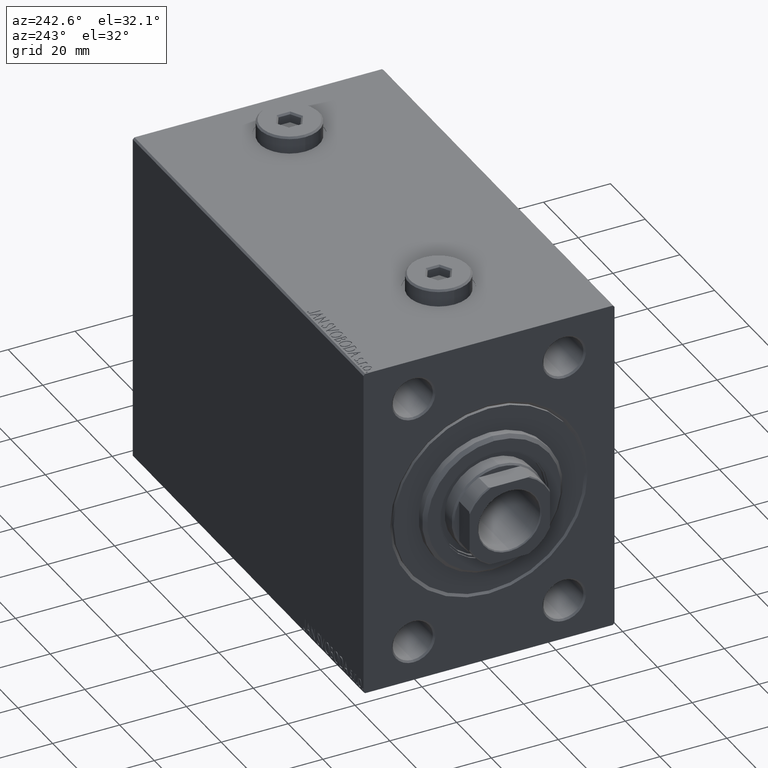
[diagram: clean part render]
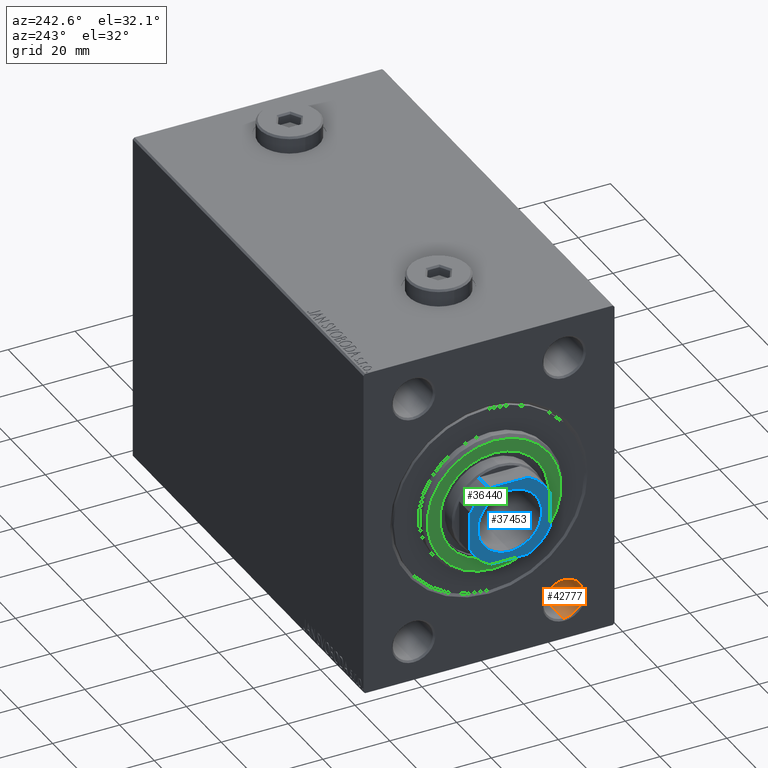
[diagram: same view with three faces highlighted in distinct colors, each labeled with its STEP entity id]
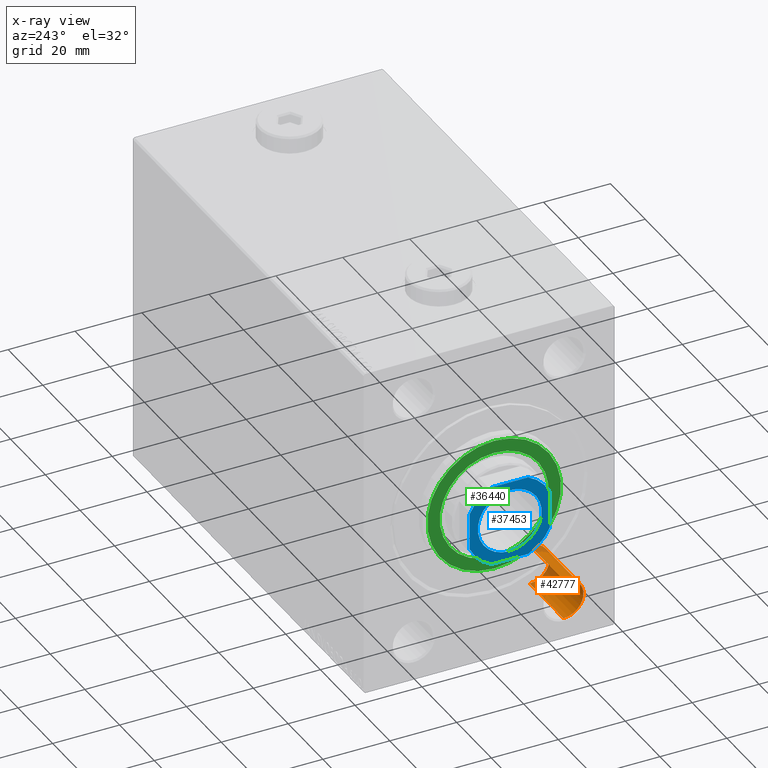
[diagram: x-ray of the same camera — body ghosted, the three highlighted faces saturated]
A machine part, auxiliary view with three faces highlighted in distinct colors.
The next image is the same camera in x-ray (body ghosted, the three faces saturated) — at least one of them is partly hidden behind the body in this view.
Their STEP definitions:

[orange] entity #42777 — the highlighted cylindrical surface (edge-blend (fillet) strip) has radius 6 mm, axis along (-1, -0, -0).
#3853 = DIRECTION ( 'NONE',  ( -1.000000000000000000, -0.000000000000000000, -0.000000000000000000 ) ) ;
#5293 = EDGE_LOOP ( 'NONE', ( #25548, #40086, #42878, #21925 ) ) ;
#6333 = DIRECTION ( 'NONE',  ( -1.000000000000000000, 0.000000000000000000, 0.000000000000000000 ) ) ;
#6869 = VERTEX_POINT ( 'NONE', #41028 ) ;
#9415 = CARTESIAN_POINT ( 'NONE',  ( 20.00000000000000000, -22.50000000000000000, -32.00000000000000711 ) ) ;
#9768 = CARTESIAN_POINT ( 'NONE',  ( 0.000000000000000000, -22.50000000000000000, -32.00000000000000711 ) ) ;
#11003 = CARTESIAN_POINT ( 'NONE',  ( 0.5000000000000004441, -22.50000000000000000, -44.00000000000000711 ) ) ;
#11447 = CARTESIAN_POINT ( 'NONE',  ( 0.000000000000000000, -22.50000000000000000, -44.00000000000000711 ) ) ;
#14233 = CARTESIAN_POINT ( 'NONE',  ( 0.000000000000000000, -22.50000000000000000, -38.00000000000000711 ) ) ;
#15469 = AXIS2_PLACEMENT_3D ( 'NONE', #14233, #3853, #18161 ) ;
#16380 = VERTEX_POINT ( 'NONE', #11003 ) ;
#17651 = CIRCLE ( 'NONE', #36857, 5.999999999999998224 ) ;
#18161 = DIRECTION ( 'NONE',  ( 0.000000000000000000, 0.000000000000000000, 1.000000000000000000 ) ) ;
#20420 = DIRECTION ( 'NONE',  ( 0.000000000000000000, 0.000000000000000000, -1.000000000000000000 ) ) ;
#20715 = CIRCLE ( 'NONE', #37708, 5.999999999999998224 ) ;
#21643 = FACE_OUTER_BOUND ( 'NONE', #5293, .T. ) ;
#21925 = ORIENTED_EDGE ( 'NONE', *, *, #32259, .F. ) ;
#24004 = LINE ( 'NONE', #11447, #31498 ) ;
#24610 = CARTESIAN_POINT ( 'NONE',  ( 20.00000000000000000, -22.50000000000000000, -38.00000000000000711 ) ) ;
#24875 = VECTOR ( 'NONE', #25457, 1000.000000000000000 ) ;
#25457 = DIRECTION ( 'NONE',  ( -1.000000000000000000, -0.000000000000000000, -0.000000000000000000 ) ) ;
#25548 = ORIENTED_EDGE ( 'NONE', *, *, #44690, .F. ) ;
#29155 = EDGE_CURVE ( 'NONE', #42883, #16380, #24004, .T. ) ;
#30873 = DIRECTION ( 'NONE',  ( 0.000000000000000000, 0.000000000000000000, 1.000000000000000000 ) ) ;
#31498 = VECTOR ( 'NONE', #34646, 1000.000000000000000 ) ;
#32259 = EDGE_CURVE ( 'NONE', #41494, #6869, #41428, .T. ) ;
#34532 = CARTESIAN_POINT ( 'NONE',  ( 0.5000000000000004441, -22.50000000000000000, -38.00000000000000711 ) ) ;
#34646 = DIRECTION ( 'NONE',  ( -1.000000000000000000, -0.000000000000000000, -0.000000000000000000 ) ) ;
#36857 = AXIS2_PLACEMENT_3D ( 'NONE', #34532, #6333, #20420 ) ;
#36875 = CARTESIAN_POINT ( 'NONE',  ( 20.00000000000000000, -22.50000000000000000, -44.00000000000000711 ) ) ;
#37708 = AXIS2_PLACEMENT_3D ( 'NONE', #24610, #45411, #30873 ) ;
#40086 = ORIENTED_EDGE ( 'NONE', *, *, #29155, .T. ) ;
#40549 = EDGE_CURVE ( 'NONE', #16380, #6869, #17651, .T. ) ;
#41028 = CARTESIAN_POINT ( 'NONE',  ( 0.5000000000000004441, -22.50000000000000000, -32.00000000000000711 ) ) ;
#41428 = LINE ( 'NONE', #9768, #24875 ) ;
#41494 = VERTEX_POINT ( 'NONE', #9415 ) ;
#42665 = CYLINDRICAL_SURFACE ( 'NONE', #15469, 5.999999999999998224 ) ;
#42777 = ADVANCED_FACE ( 'NONE', ( #21643 ), #42665, .F. ) ;
#42878 = ORIENTED_EDGE ( 'NONE', *, *, #40549, .T. ) ;
#42883 = VERTEX_POINT ( 'NONE', #36875 ) ;
#44690 = EDGE_CURVE ( 'NONE', #42883, #41494, #20715, .T. ) ;
#45411 = DIRECTION ( 'NONE',  ( -1.000000000000000000, -0.000000000000000000, -0.000000000000000000 ) ) ;

[blue] entity #37453 — the highlighted planar face has unit normal (-1, 0, 0).
#1347 = VECTOR ( 'NONE', #4729, 1000.000000000000000 ) ;
#1400 = VECTOR ( 'NONE', #12099, 1000.000000000000000 ) ;
#1786 = DIRECTION ( 'NONE',  ( 1.000000000000000000, 0.000000000000000000, 0.000000000000000000 ) ) ;
#2152 = DIRECTION ( 'NONE',  ( 0.000000000000000000, -0.000000000000000000, -1.000000000000000000 ) ) ;
#2481 = EDGE_LOOP ( 'NONE', ( #14770, #33989, #29015, #29762, #24853, #44016, #43887, #14282 ) ) ;
#2601 = DIRECTION ( 'NONE',  ( 1.000000000000000000, 0.000000000000000000, 0.000000000000000000 ) ) ;
#2951 = EDGE_CURVE ( 'NONE', #19893, #43328, #7980, .T. ) ;
#3415 = DIRECTION ( 'NONE',  ( -0.000000000000000000, 0.000000000000000000, 1.000000000000000000 ) ) ;
#3460 = DIRECTION ( 'NONE',  ( 1.000000000000000000, 0.000000000000000000, 0.000000000000000000 ) ) ;
#3930 = DIRECTION ( 'NONE',  ( -0.000000000000000000, 0.000000000000000000, 1.000000000000000000 ) ) ;
#4331 = CARTESIAN_POINT ( 'NONE',  ( 0.000000000000000000, 0.000000000000000000, 131.0000000000000000 ) ) ;
#4729 = DIRECTION ( 'NONE',  ( -1.000000000000000000, -0.000000000000000000, -0.000000000000000000 ) ) ;
#5173 = EDGE_CURVE ( 'NONE', #43328, #19893, #45690, .T. ) ;
#6368 = EDGE_CURVE ( 'NONE', #36756, #13837, #18396, .T. ) ;
#7531 = VERTEX_POINT ( 'NONE', #14262 ) ;
#7613 = CARTESIAN_POINT ( 'NONE',  ( -11.99999999999999822, -12.00000000000000355, 131.0000000000000000 ) ) ;
#7614 = DIRECTION ( 'NONE',  ( 1.000000000000000000, 0.000000000000000000, 0.000000000000000000 ) ) ;
#7980 = CIRCLE ( 'NONE', #17573, 9.550000000000030909 ) ;
#8286 = EDGE_CURVE ( 'NONE', #25953, #7531, #11887, .T. ) ;
#8464 = CARTESIAN_POINT ( 'NONE',  ( 12.00000000000000000, -5.499090833946961965, 131.0000000000000000 ) ) ;
#9172 = DIRECTION ( 'NONE',  ( 0.000000000000000000, -0.000000000000000000, -1.000000000000000000 ) ) ;
#9360 = CARTESIAN_POINT ( 'NONE',  ( 0.000000000000000000, 0.000000000000000000, 131.0000000000000000 ) ) ;
#9506 = AXIS2_PLACEMENT_3D ( 'NONE', #15995, #2152, #2601 ) ;
#11484 = FACE_OUTER_BOUND ( 'NONE', #2481, .T. ) ;
#11887 = LINE ( 'NONE', #40760, #1347 ) ;
#12099 = DIRECTION ( 'NONE',  ( -2.168404344971008868E-16, 1.000000000000000000, -0.000000000000000000 ) ) ;
#12501 = AXIS2_PLACEMENT_3D ( 'NONE', #31443, #3930, #38115 ) ;
#12556 = VECTOR ( 'NONE', #3460, 1000.000000000000000 ) ;
#12855 = EDGE_CURVE ( 'NONE', #27791, #36756, #34893, .T. ) ;
#13041 = DIRECTION ( 'NONE',  ( 1.000000000000000000, 0.000000000000000000, 0.000000000000000000 ) ) ;
#13193 = CARTESIAN_POINT ( 'NONE',  ( -12.00000000000000178, 5.499090833946936208, 131.0000000000000000 ) ) ;
#13626 = EDGE_CURVE ( 'NONE', #7531, #38406, #22410, .T. ) ;
#13837 = VERTEX_POINT ( 'NONE', #8464 ) ;
#14262 = CARTESIAN_POINT ( 'NONE',  ( -5.499090833946946866, 11.99999999999999645, 131.0000000000000000 ) ) ;
#14282 = ORIENTED_EDGE ( 'NONE', *, *, #6368, .T. ) ;
#14770 = ORIENTED_EDGE ( 'NONE', *, *, #37032, .T. ) ;
#15995 = CARTESIAN_POINT ( 'NONE',  ( 0.000000000000000000, 0.000000000000000000, 131.0000000000000000 ) ) ;
#16948 = ORIENTED_EDGE ( 'NONE', *, *, #5173, .T. ) ;
#17573 = AXIS2_PLACEMENT_3D ( 'NONE', #43845, #9172, #1786 ) ;
#18396 = CIRCLE ( 'NONE', #12501, 13.19999999999998153 ) ;
#18975 = LINE ( 'NONE', #23369, #31825 ) ;
#19216 = DIRECTION ( 'NONE',  ( 2.168404344971008868E-16, -1.000000000000000000, 0.000000000000000000 ) ) ;
#19864 = AXIS2_PLACEMENT_3D ( 'NONE', #39391, #25529, #39612 ) ;
#19893 = VERTEX_POINT ( 'NONE', #43862 ) ;
#22410 = CIRCLE ( 'NONE', #43783, 13.19999999999997264 ) ;
#23369 = CARTESIAN_POINT ( 'NONE',  ( -12.00000000000000355, 11.99999999999999645, 131.0000000000000000 ) ) ;
#23659 = VERTEX_POINT ( 'NONE', #30432 ) ;
#24853 = ORIENTED_EDGE ( 'NONE', *, *, #45149, .T. ) ;
#25052 = AXIS2_PLACEMENT_3D ( 'NONE', #4331, #3415, #28854 ) ;
#25137 = PLANE ( 'NONE',  #25052 ) ;
#25529 = DIRECTION ( 'NONE',  ( -0.000000000000000000, 0.000000000000000000, 1.000000000000000000 ) ) ;
#25779 = CIRCLE ( 'NONE', #19864, 13.19999999999998153 ) ;
#25953 = VERTEX_POINT ( 'NONE', #29828 ) ;
#27791 = VERTEX_POINT ( 'NONE', #37233 ) ;
#28854 = DIRECTION ( 'NONE',  ( 1.000000000000000000, 0.000000000000000000, 0.000000000000000000 ) ) ;
#29015 = ORIENTED_EDGE ( 'NONE', *, *, #8286, .T. ) ;
#29118 = DIRECTION ( 'NONE',  ( -0.000000000000000000, 0.000000000000000000, 1.000000000000000000 ) ) ;
#29233 = LINE ( 'NONE', #29916, #1400 ) ;
#29762 = ORIENTED_EDGE ( 'NONE', *, *, #13626, .T. ) ;
#29828 = CARTESIAN_POINT ( 'NONE',  ( 5.499090833946969070, 11.99999999999999645, 131.0000000000000000 ) ) ;
#29916 = CARTESIAN_POINT ( 'NONE',  ( 11.99999999999999645, 11.99999999999999645, 131.0000000000000000 ) ) ;
#30048 = CIRCLE ( 'NONE', #42563, 13.19999999999997264 ) ;
#30432 = CARTESIAN_POINT ( 'NONE',  ( -12.00000000000000000, -5.499090833946937096, 131.0000000000000000 ) ) ;
#31028 = EDGE_CURVE ( 'NONE', #23659, #27791, #30048, .T. ) ;
#31443 = CARTESIAN_POINT ( 'NONE',  ( 0.000000000000000000, 0.000000000000000000, 131.0000000000000000 ) ) ;
#31825 = VECTOR ( 'NONE', #19216, 1000.000000000000000 ) ;
#32541 = FACE_BOUND ( 'NONE', #36854, .T. ) ;
#33643 = DIRECTION ( 'NONE',  ( -0.000000000000000000, 0.000000000000000000, 1.000000000000000000 ) ) ;
#33989 = ORIENTED_EDGE ( 'NONE', *, *, #37021, .T. ) ;
#34893 = LINE ( 'NONE', #7613, #12556 ) ;
#35343 = CARTESIAN_POINT ( 'NONE',  ( 9.550000000000030909, 0.000000000000000000, 131.0000000000000000 ) ) ;
#36756 = VERTEX_POINT ( 'NONE', #44739 ) ;
#36854 = EDGE_LOOP ( 'NONE', ( #16948, #43765 ) ) ;
#37021 = EDGE_CURVE ( 'NONE', #39233, #25953, #25779, .T. ) ;
#37032 = EDGE_CURVE ( 'NONE', #13837, #39233, #29233, .T. ) ;
#37233 = CARTESIAN_POINT ( 'NONE',  ( -5.499090833946932655, -12.00000000000000355, 131.0000000000000000 ) ) ;
#37453 = ADVANCED_FACE ( 'NONE', ( #32541, #11484 ), #25137, .T. ) ;
#38115 = DIRECTION ( 'NONE',  ( 1.000000000000000000, 0.000000000000000000, 0.000000000000000000 ) ) ;
#38406 = VERTEX_POINT ( 'NONE', #13193 ) ;
#39233 = VERTEX_POINT ( 'NONE', #44867 ) ;
#39270 = CARTESIAN_POINT ( 'NONE',  ( 0.000000000000000000, 0.000000000000000000, 131.0000000000000000 ) ) ;
#39391 = CARTESIAN_POINT ( 'NONE',  ( 0.000000000000000000, 0.000000000000000000, 131.0000000000000000 ) ) ;
#39612 = DIRECTION ( 'NONE',  ( 1.000000000000000000, 0.000000000000000000, 0.000000000000000000 ) ) ;
#40760 = CARTESIAN_POINT ( 'NONE',  ( -12.00000000000000355, 11.99999999999999645, 131.0000000000000000 ) ) ;
#42563 = AXIS2_PLACEMENT_3D ( 'NONE', #9360, #33643, #13041 ) ;
#43328 = VERTEX_POINT ( 'NONE', #35343 ) ;
#43765 = ORIENTED_EDGE ( 'NONE', *, *, #2951, .T. ) ;
#43783 = AXIS2_PLACEMENT_3D ( 'NONE', #39270, #29118, #7614 ) ;
#43845 = CARTESIAN_POINT ( 'NONE',  ( 0.000000000000000000, 0.000000000000000000, 131.0000000000000000 ) ) ;
#43862 = CARTESIAN_POINT ( 'NONE',  ( -9.550000000000030909, 1.169537693185725911E-15, 131.0000000000000000 ) ) ;
#43887 = ORIENTED_EDGE ( 'NONE', *, *, #12855, .T. ) ;
#44016 = ORIENTED_EDGE ( 'NONE', *, *, #31028, .T. ) ;
#44739 = CARTESIAN_POINT ( 'NONE',  ( 5.499090833946954859, -12.00000000000000355, 131.0000000000000000 ) ) ;
#44867 = CARTESIAN_POINT ( 'NONE',  ( 11.99999999999999645, 5.499090833946967294, 131.0000000000000000 ) ) ;
#45149 = EDGE_CURVE ( 'NONE', #38406, #23659, #18975, .T. ) ;
#45690 = CIRCLE ( 'NONE', #9506, 9.550000000000030909 ) ;

[green] entity #36440 — the highlighted planar face has unit normal (-1, 0, 0).
#914 = VERTEX_POINT ( 'NONE', #5806 ) ;
#970 = DIRECTION ( 'NONE',  ( 0.000000000000000000, 0.000000000000000000, -1.000000000000000000 ) ) ;
#2200 = CARTESIAN_POINT ( 'NONE',  ( 3.000000000000000000, 0.000000000000000000, 0.000000000000000000 ) ) ;
#2878 = DIRECTION ( 'NONE',  ( 1.000000000000000000, -0.000000000000000000, 0.000000000000000000 ) ) ;
#3546 = AXIS2_PLACEMENT_3D ( 'NONE', #5903, #13043, #30418 ) ;
#4111 = FACE_BOUND ( 'NONE', #22254, .T. ) ;
#4560 = FACE_OUTER_BOUND ( 'NONE', #34070, .T. ) ;
#5806 = CARTESIAN_POINT ( 'NONE',  ( 3.000000000000000000, 2.510525938252074087E-15, -19.99999999999999645 ) ) ;
#5845 = AXIS2_PLACEMENT_3D ( 'NONE', #2200, #2878, #27148 ) ;
#5900 = CARTESIAN_POINT ( 'NONE',  ( 3.000000000000000000, 0.000000000000000000, 0.000000000000000000 ) ) ;
#5903 = CARTESIAN_POINT ( 'NONE',  ( 3.000000000000000000, 0.000000000000000000, 0.000000000000000000 ) ) ;
#6109 = EDGE_CURVE ( 'NONE', #23177, #43457, #43483, .T. ) ;
#7528 = VERTEX_POINT ( 'NONE', #20983 ) ;
#8032 = PLANE ( 'NONE',  #33901 ) ;
#8136 = CARTESIAN_POINT ( 'NONE',  ( 3.000000000000000000, 0.000000000000000000, 0.000000000000000000 ) ) ;
#8358 = DIRECTION ( 'NONE',  ( 1.000000000000000000, 0.000000000000000000, 0.000000000000000000 ) ) ;
#10298 = CIRCLE ( 'NONE', #5845, 19.99999999999999645 ) ;
#11489 = DIRECTION ( 'NONE',  ( 1.000000000000000000, -0.000000000000000000, 0.000000000000000000 ) ) ;
#12535 = CARTESIAN_POINT ( 'NONE',  ( 3.000000000000000000, 0.000000000000000000, -16.25000000000000000 ) ) ;
#13043 = DIRECTION ( 'NONE',  ( 1.000000000000000000, -0.000000000000000000, 0.000000000000000000 ) ) ;
#13498 = DIRECTION ( 'NONE',  ( 0.000000000000000000, 0.000000000000000000, -1.000000000000000000 ) ) ;
#16594 = CIRCLE ( 'NONE', #35075, 16.25000000000000000 ) ;
#17443 = ORIENTED_EDGE ( 'NONE', *, *, #26387, .F. ) ;
#18995 = CIRCLE ( 'NONE', #3546, 19.99999999999999645 ) ;
#20983 = CARTESIAN_POINT ( 'NONE',  ( 3.000000000000000000, 0.000000000000000000, 19.99999999999999645 ) ) ;
#21320 = AXIS2_PLACEMENT_3D ( 'NONE', #8136, #8358, #970 ) ;
#21456 = CARTESIAN_POINT ( 'NONE',  ( 3.000000000000000000, 0.000000000000000000, 0.000000000000000000 ) ) ;
#21931 = CARTESIAN_POINT ( 'NONE',  ( 3.000000000000000000, 1.990051048614449313E-15, 16.25000000000000000 ) ) ;
#22254 = EDGE_LOOP ( 'NONE', ( #33380, #17443 ) ) ;
#22300 = ORIENTED_EDGE ( 'NONE', *, *, #32709, .T. ) ;
#23177 = VERTEX_POINT ( 'NONE', #12535 ) ;
#26387 = EDGE_CURVE ( 'NONE', #43457, #23177, #16594, .T. ) ;
#27148 = DIRECTION ( 'NONE',  ( 0.000000000000000000, 0.000000000000000000, -1.000000000000000000 ) ) ;
#27617 = DIRECTION ( 'NONE',  ( 1.000000000000000000, 0.000000000000000000, 0.000000000000000000 ) ) ;
#29537 = DIRECTION ( 'NONE',  ( 0.000000000000000000, 0.000000000000000000, -1.000000000000000000 ) ) ;
#30418 = DIRECTION ( 'NONE',  ( 0.000000000000000000, 0.000000000000000000, -1.000000000000000000 ) ) ;
#30999 = ORIENTED_EDGE ( 'NONE', *, *, #40562, .T. ) ;
#32709 = EDGE_CURVE ( 'NONE', #914, #7528, #18995, .T. ) ;
#33380 = ORIENTED_EDGE ( 'NONE', *, *, #6109, .F. ) ;
#33901 = AXIS2_PLACEMENT_3D ( 'NONE', #21456, #11489, #29537 ) ;
#34070 = EDGE_LOOP ( 'NONE', ( #30999, #22300 ) ) ;
#35075 = AXIS2_PLACEMENT_3D ( 'NONE', #5900, #27617, #13498 ) ;
#36440 = ADVANCED_FACE ( 'NONE', ( #4560, #4111 ), #8032, .T. ) ;
#40562 = EDGE_CURVE ( 'NONE', #7528, #914, #10298, .T. ) ;
#43457 = VERTEX_POINT ( 'NONE', #21931 ) ;
#43483 = CIRCLE ( 'NONE', #21320, 16.25000000000000000 ) ;